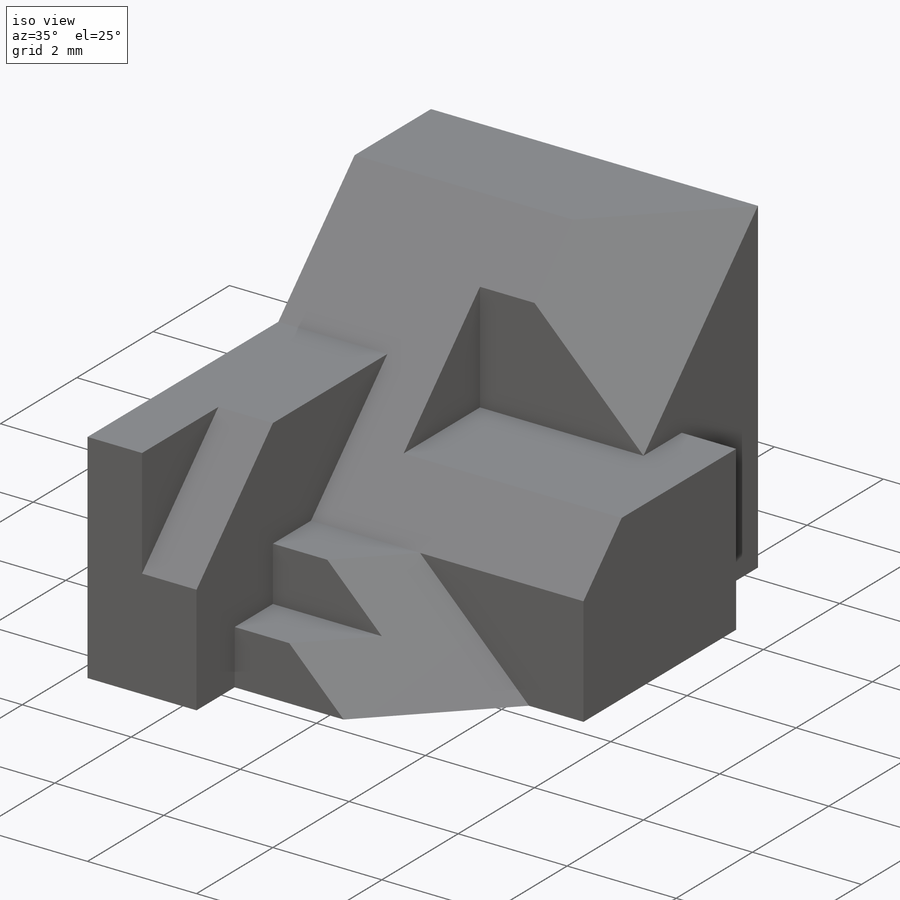
[diagram: iso view]
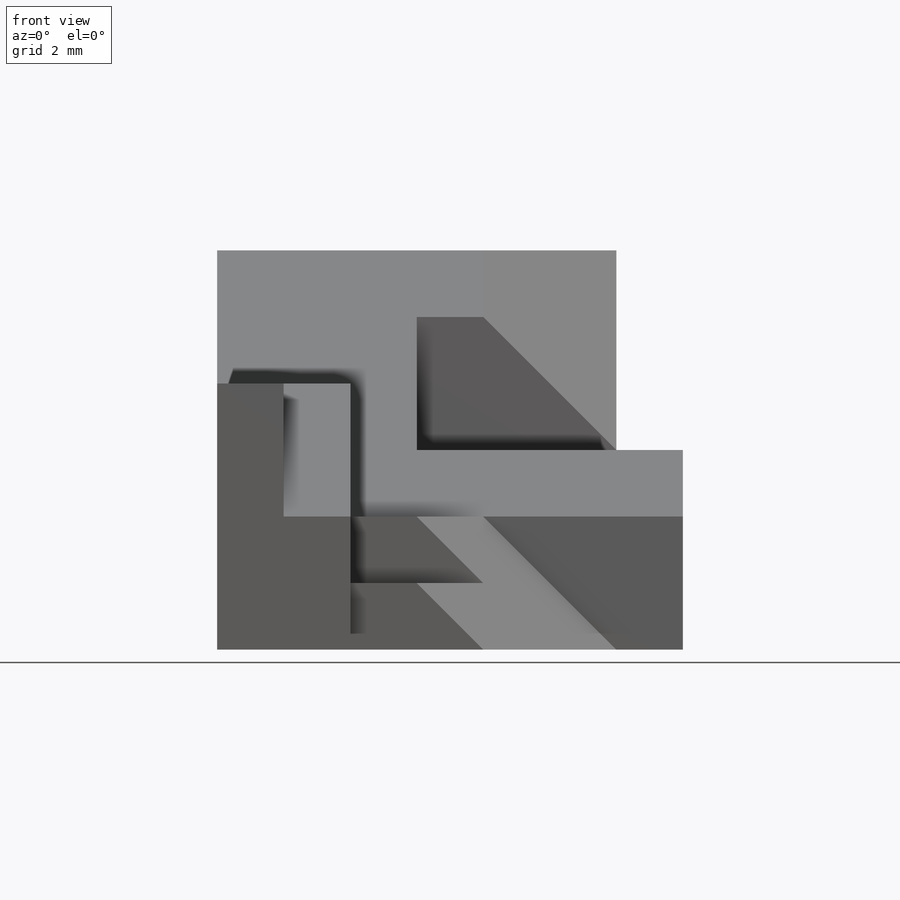
[diagram: front view]
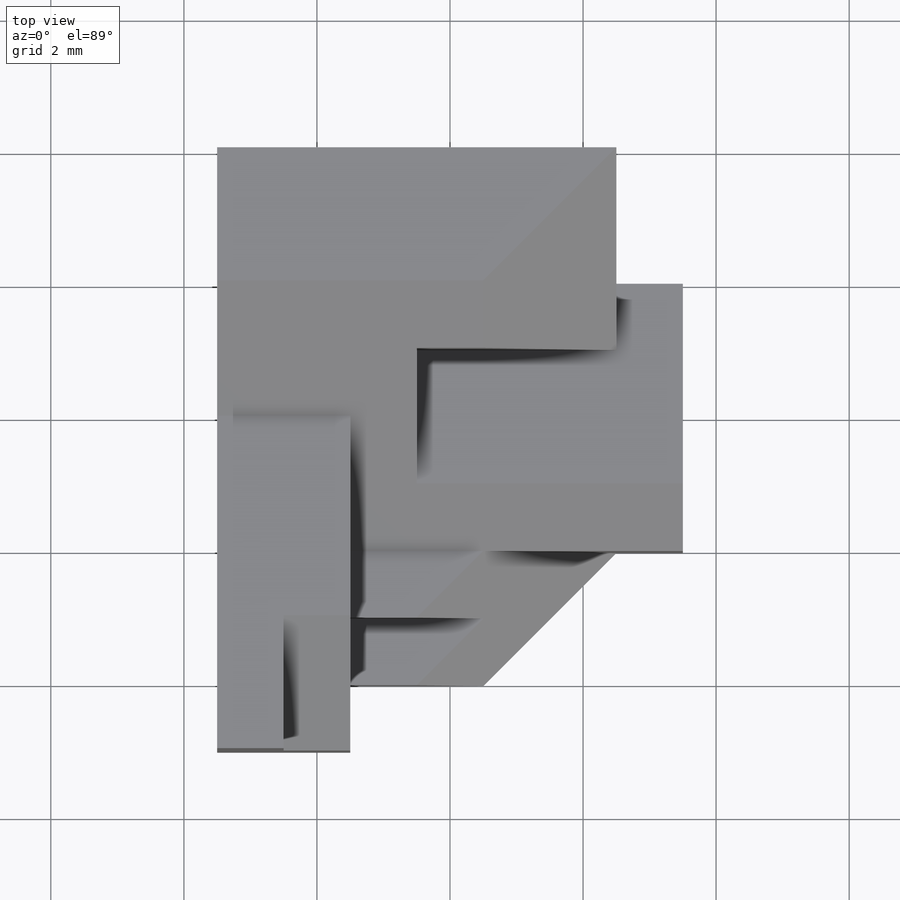
[diagram: top view]
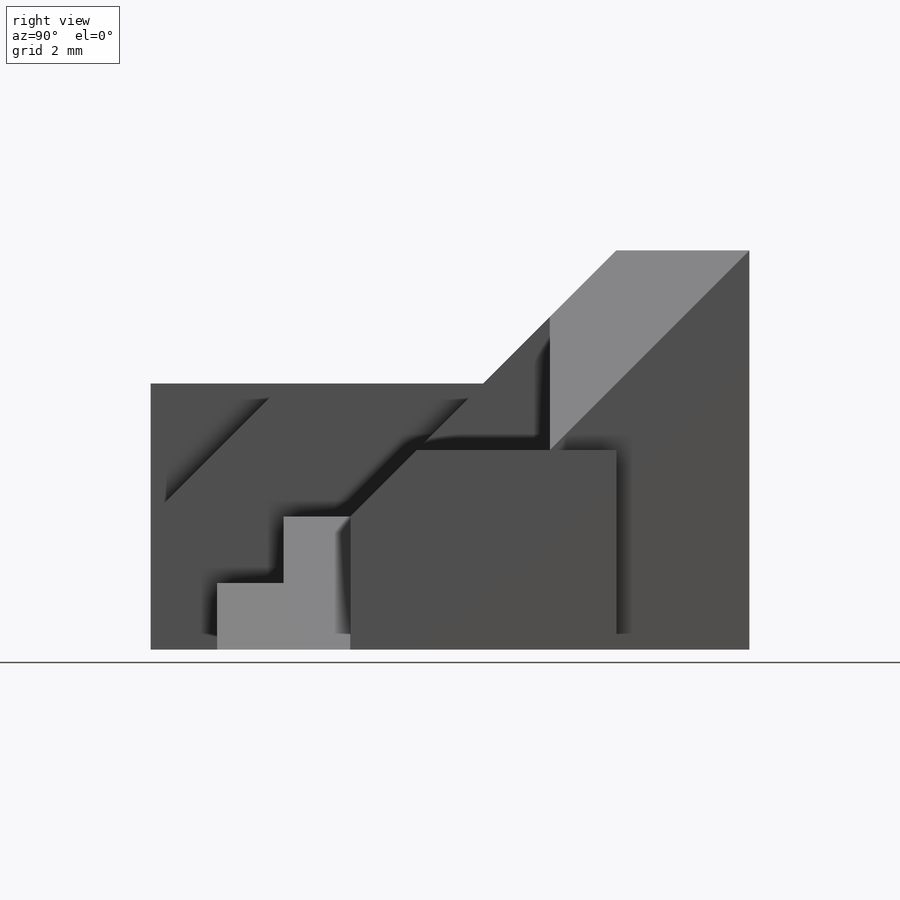
[diagram: right view]
SOLIDWORKS PART (.sldprt)
format: sldprt  version: not decoded by parser v0  size: 432,640 bytes
history: native  units: mm
features: sketch x23, cut_extrude x16, plane x3, extrude x2, material x1 (+13 scaffold rows collapsed)
feature tree (58):
  scaffold x13  (default folders/planes/origin — collapsed)
  material  "Material <not specified>"
  sketch  "Sketch1"  dims[D1=7.0mm D2=6.0mm]
  extrude  "Boss-Extrude1"  Depth=9mm
  sketch  "Sketch2"  dims[D1=2.0mm D2=5.0mm D3=2.0mm]
  cut_extrude  "Cut-Extrude1"  Depth=2mm
  sketch  "Sketch3"  dims[D1=2.0mm D2=1.0mm D3=3.0mm]
  cut_extrude  "Cut-Extrude2"  Depth=1mm
  sketch  "Sketch4"
  sketch  "Sketch5"
  cut_extrude  "Cut-Extrude3"  [1 undecoded]
  sketch  "Sketch6"  dims[D1=4.0mm D2=2.0mm]
  plane  "Plane1"
  sketch  "Sketch8"
  cut_extrude  "Cut-Extrude6"  Depth=2mm
  sketch  "Sketch9"  dims[D1=3.0mm]
  cut_extrude  "Cut-Extrude7"  Depth=1mm
  sketch  "Sketch11"  dims[D1=2.0mm]
  cut_extrude  "Cut-Extrude9"  Depth=3mm
  sketch  "Sketch13"
  cut_extrude  "Cut-Extrude11"  Depth=3mm
  sketch  "Sketch14"
  cut_extrude  "Cut-Extrude12"  Depth=1mm
  sketch  "Sketch15"  dims[D1=2.0mm D2=2.0mm]
  cut_extrude  "Cut-Extrude13"  Depth=6mm
  sketch  "Sketch17"  dims[c1.D1=3.0mm c1.D2=2.0mm c1.D3=4.0mm c2.D1=3.0mm]
  cut_extrude  "Cut-Extrude14"  Depth=5mm
  sketch  "Sketch18"
  cut_extrude  "Cut-Extrude16"  Depth=5mm
  plane  "Plane4"
  sketch  "Sketch20"
  cut_extrude  "Cut-Extrude17"  [1 undecoded]
  sketch  "Sketch21"  dims[D1=1.0mm D2=1.0mm D3=1.0mm D4=1.0mm]
  extrude  "Boss-Extrude2"  Depth=4mm
  sketch  "Sketch22"  dims[D1=2.0mm D2=1.0mm]
  sketch  "Sketch23"  dims[D1=2.0mm]
  plane  "Plane5"
  sketch  "Sketch24"
  cut_extrude  "Cut-Extrude19"  Depth=4mm
  sketch  "Sketch25"
  cut_extrude  "Cut-Extrude20"  [1 undecoded]
  sketch  "Sketch26"  dims[D1=1.0mm]
  cut_extrude  "Cut-Extrude22"  [1 undecoded]
  sketch  "Sketch27"
  sketch  "Sketch28"
  cut_extrude  "Cut-Extrude23"  Depth=10mm
decode coverage: 26 of 41 modeling features carry decoded parameters
note: 4 parameter values undecoded
summary: no parameter record found for 4 features
note: suppression state not decoded; provenance and decode notes live in map.json
